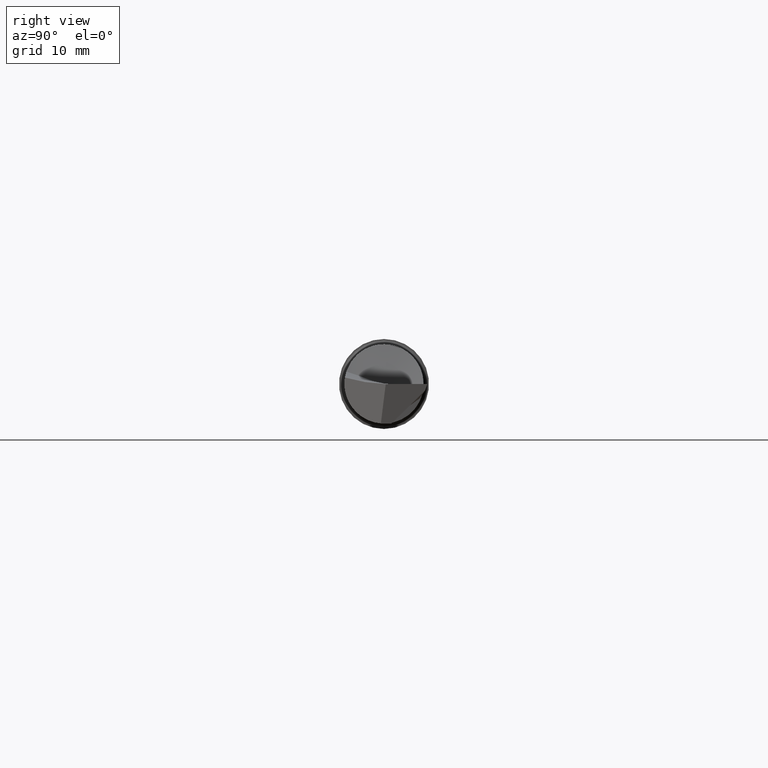
[diagram: clean part render]
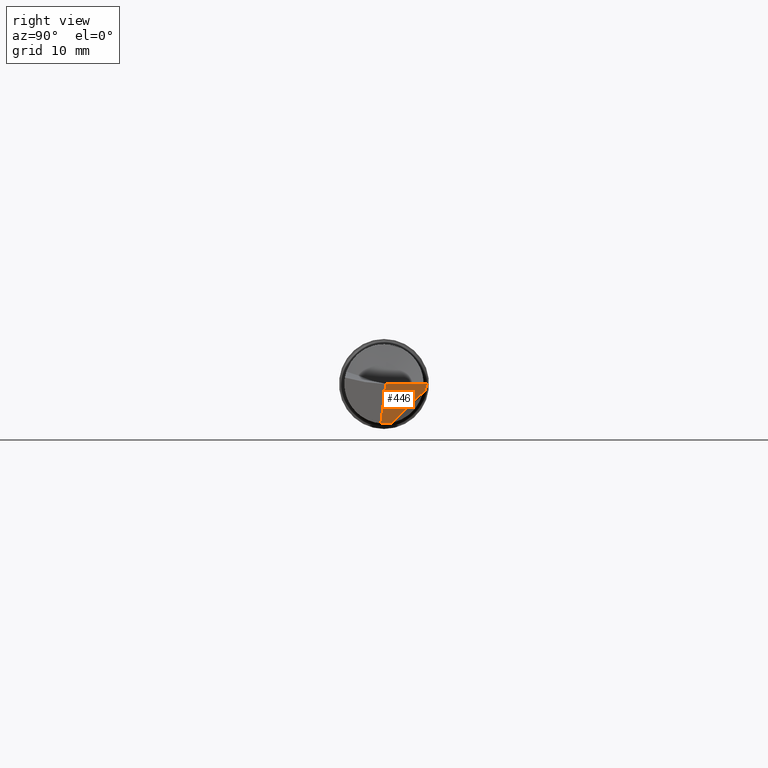
[diagram: same view with one face highlighted and labeled with its STEP entity id]
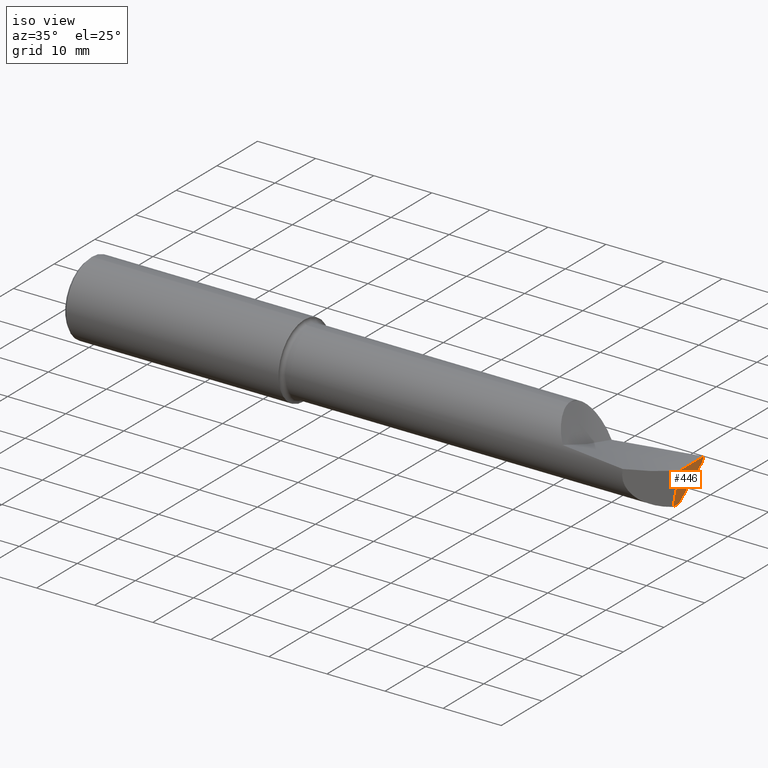
[diagram: same view with one face highlighted and labeled with its STEP entity id]
A machine part, right view. The second image highlights one B-rep face of the part: STEP entity #446.
A second angle (iso view) of the same face is appended — the face is thin or edge-on in the first view.
In plain terms, the highlighted planar face has unit normal (-0.9925, 0.0087, 0.1219).
Its self-contained STEP definition (entity closure, byte-faithful):
#18 = CARTESIAN_POINT ( 'NONE',  ( 3.996665286806010631, 0.2315810568624992460, -0.02654190685166167574 ) ) ;
#23 = CARTESIAN_POINT ( 'NONE',  ( 3.997776599503137795, 0.2344790317911102373, -0.01769730055367019564 ) ) ;
#53 = CARTESIAN_POINT ( 'NONE',  ( 3.960702989773093652, -0.02764916303553413557, -0.3009961683226823337 ) ) ;
#96 = AXIS2_PLACEMENT_3D ( 'NONE', #551, #367, #678 ) ;
#110 = CARTESIAN_POINT ( 'NONE',  ( 3.971247793545428006, 0.04102909952493548340, -0.2200000000000000566 ) ) ;
#116 = CARTESIAN_POINT ( 'NONE',  ( 3.970838677816552753, -0.005850919593664221513, -0.2200000000000000011 ) ) ;
#119 = VECTOR ( 'NONE', #411, 39.37007874015748854 ) ;
#143 = CARTESIAN_POINT ( 'NONE',  ( 3.998938641188131360, 0.1633380998407393259, -0.003177467661418243317 ) ) ;
#148 = CARTESIAN_POINT ( 'NONE',  ( 3.998256711176775724, 0.08645143747529215883, -0.003266647090703820016 ) ) ;
#156 = EDGE_CURVE ( 'NONE', #734, #737, #438, .T. ) ;
#159 = FACE_OUTER_BOUND ( 'NONE', #588, .T. ) ;
#169 = LINE ( 'NONE', #53, #467 ) ;
#182 = CARTESIAN_POINT ( 'NONE',  ( 3.970847024906385414, -0.004894437837194355254, -0.2200000000000000566 ) ) ;
#186 = ORIENTED_EDGE ( 'NONE', *, *, #395, .F. ) ;
#197 = CARTESIAN_POINT ( 'NONE',  ( 4.000000000000000000, 0.2402499999999999636, 0.000000000000000000 ) ) ;
#228 = VERTEX_POINT ( 'NONE', #283 ) ;
#250 = CARTESIAN_POINT ( 'NONE',  ( 3.997220900003098709, 0.2330314313508999591, -0.02212005370833387830 ) ) ;
#257 = CARTESIAN_POINT ( 'NONE',  ( 3.995924508398109420, 0.2296459939770620906, -0.03243730289249242144 ) ) ;
#269 = CARTESIAN_POINT ( 'NONE',  ( 3.987387192537214631, 0.1666979988148709069, -0.09749167947812314994 ) ) ;
#283 = CARTESIAN_POINT ( 'NONE',  ( 3.970889738018300363, 0.000000000000000000, -0.2200000000000000566 ) ) ;
#293 = CARTESIAN_POINT ( 'NONE',  ( 3.970889738018300363, 0.000000000000000000, -0.2200000000000000566 ) ) ;
#314 = EDGE_CURVE ( 'NONE', #549, #228, #341, .T. ) ;
#327 = ORIENTED_EDGE ( 'NONE', *, *, #423, .T. ) ;
#335 = ORIENTED_EDGE ( 'NONE', *, *, #314, .T. ) ;
#341 =( BOUNDED_CURVE ( )  B_SPLINE_CURVE ( 3, ( #357, #587, #116, #293 ),
 .UNSPECIFIED., .F., .F. ) 
 B_SPLINE_CURVE_WITH_KNOTS ( ( 4, 4 ),
 ( 6.274373815428443635, 6.354137930144020174 ),
 .UNSPECIFIED. ) 
 CURVE ( )  GEOMETRIC_REPRESENTATION_ITEM ( )  RATIONAL_B_SPLINE_CURVE ( ( 1.000000000000000000, 0.9994698774393541152, 0.9994698774393541152, 1.000000000000000000 ) ) 
 REPRESENTATION_ITEM ( '' )  );
#357 = CARTESIAN_POINT ( 'NONE',  ( 3.970822649411937633, -0.01752950339669014437, -0.2193005164395776252 ) ) ;
#367 = DIRECTION ( 'NONE',  ( -0.9925083585251991414, 0.008661489226065230418, 0.1218693434051474900 ) ) ;
#371 = CARTESIAN_POINT ( 'NONE',  ( 3.997941307501973185, 0.009589154693344590849, -0.0003725554249012129554 ) ) ;
#395 = EDGE_CURVE ( 'NONE', #734, #228, #696, .T. ) ;
#409 = B_SPLINE_CURVE_WITH_KNOTS ( 'NONE', 3,
 ( #445, #143, #148, #371 ),
 .UNSPECIFIED., .F., .F.,
 ( 4, 4 ),
 ( 2.402691837942656048E-16, 0.005858684638792624119 ),
 .UNSPECIFIED. ) ;
#411 = DIRECTION ( 'NONE',  ( -0.008726535498366671390, -0.9999619230641714207, 0.000000000000000000 ) ) ;
#423 = EDGE_CURVE ( 'NONE', #737, #745, #628, .T. ) ;
#438 = B_SPLINE_CURVE_WITH_KNOTS ( 'NONE', 3,
 ( #110, #741, #269, #507 ),
 .UNSPECIFIED., .F., .F.,
 ( 4, 4 ),
 ( 5.707661567923001753E-05, 0.006771847982226781790 ),
 .UNSPECIFIED. ) ;
#440 = ORIENTED_EDGE ( 'NONE', *, *, #156, .T. ) ;
#445 = CARTESIAN_POINT ( 'NONE',  ( 4.000000000000000000, 0.2402499999999999636, 0.000000000000000000 ) ) ;
#446 = ADVANCED_FACE ( 'NONE', ( #159 ), #739, .F. ) ;
#456 = VERTEX_POINT ( 'NONE', #715 ) ;
#458 = EDGE_CURVE ( 'NONE', #745, #456, #409, .T. ) ;
#467 = VECTOR ( 'NONE', #635, 39.37007874015748143 ) ;
#488 = CARTESIAN_POINT ( 'NONE',  ( 3.995554176883930886, 0.2286766137360566886, -0.03538440047009814432 ) ) ;
#498 = CARTESIAN_POINT ( 'NONE',  ( 3.998888170757105787, 0.2373686809149640198, -0.008849996828388207587 ) ) ;
#507 = CARTESIAN_POINT ( 'NONE',  ( 3.995554176883930886, 0.2286766137360566886, -0.03538440047009814432 ) ) ;
#546 = CARTESIAN_POINT ( 'NONE',  ( 3.971247793545428006, 0.04102909952493548340, -0.2200000000000000566 ) ) ;
#547 = CARTESIAN_POINT ( 'NONE',  ( 3.995554176883930886, 0.2286766137360566886, -0.03538440047009814432 ) ) ;
#549 = VERTEX_POINT ( 'NONE', #694 ) ;
#551 = CARTESIAN_POINT ( 'NONE',  ( 4.000000000000000000, 0.2402499999999999636, 0.000000000000000000 ) ) ;
#571 = EDGE_CURVE ( 'NONE', #549, #456, #169, .T. ) ;
#587 = CARTESIAN_POINT ( 'NONE',  ( 3.970816303086414756, -0.01169718663061289528, -0.2197667151436271948 ) ) ;
#588 = EDGE_LOOP ( 'NONE', ( #327, #684, #618, #335, #186, #440 ) ) ;
#596 = CARTESIAN_POINT ( 'NONE',  ( 3.996294878558303232, 0.2306141419735369125, -0.02948980456723936106 ) ) ;
#618 = ORIENTED_EDGE ( 'NONE', *, *, #571, .F. ) ;
#628 = B_SPLINE_CURVE_WITH_KNOTS ( 'NONE', 3,
 ( #547, #257, #596, #18, #250, #23, #720, #498, #665, #197 ),
 .UNSPECIFIED., .F., .F.,
 ( 4, 3, 3, 4 ),
 ( 5.421010862427522170E-19, 0.0002380835754664484369, 0.0005952095077557083280, 0.0009523359941418462187 ),
 .UNSPECIFIED. ) ;
#635 = DIRECTION ( 'NONE',  ( 0.1220122463319276707, 0.1220122463319275735, 0.9850005195379716305 ) ) ;
#665 = CARTESIAN_POINT ( 'NONE',  ( 3.999444042726896686, 0.2388107301504568125, -0.004425444538990249733 ) ) ;
#678 = DIRECTION ( 'NONE',  ( 0.1218739150664907567, 0.000000000000000000, 0.9925455903012041503 ) ) ;
#684 = ORIENTED_EDGE ( 'NONE', *, *, #458, .T. ) ;
#694 = CARTESIAN_POINT ( 'NONE',  ( 3.970822649411937633, -0.01752950339669014437, -0.2193005164395776252 ) ) ;
#696 = LINE ( 'NONE', #182, #119 ) ;
#715 = CARTESIAN_POINT ( 'NONE',  ( 3.997941307501973185, 0.009589154693344590849, -0.0003725554249012129554 ) ) ;
#717 = CARTESIAN_POINT ( 'NONE',  ( 4.000000000000000000, 0.2402499999999999636, 0.000000000000000000 ) ) ;
#720 = CARTESIAN_POINT ( 'NONE',  ( 3.998332384698991770, 0.2359238552322684146, -0.01327365212251195060 ) ) ;
#734 = VERTEX_POINT ( 'NONE', #546 ) ;
#737 = VERTEX_POINT ( 'NONE', #488 ) ;
#739 = PLANE ( 'NONE',  #96 ) ;
#741 = CARTESIAN_POINT ( 'NONE',  ( 3.979285236293183647, 0.1041417096289329880, -0.1590283092675112142 ) ) ;
#745 = VERTEX_POINT ( 'NONE', #717 ) ;